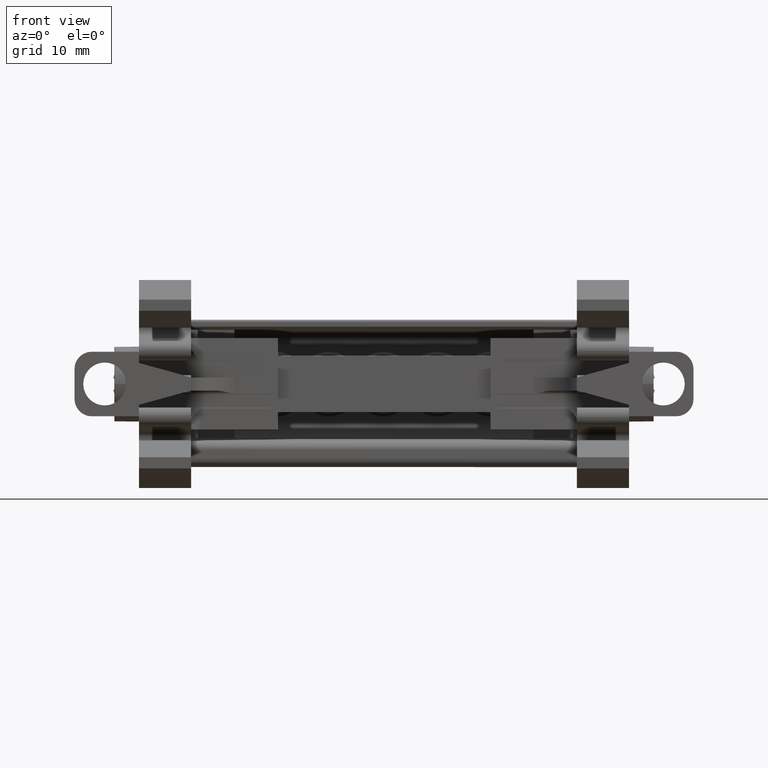
[diagram: clean part render]
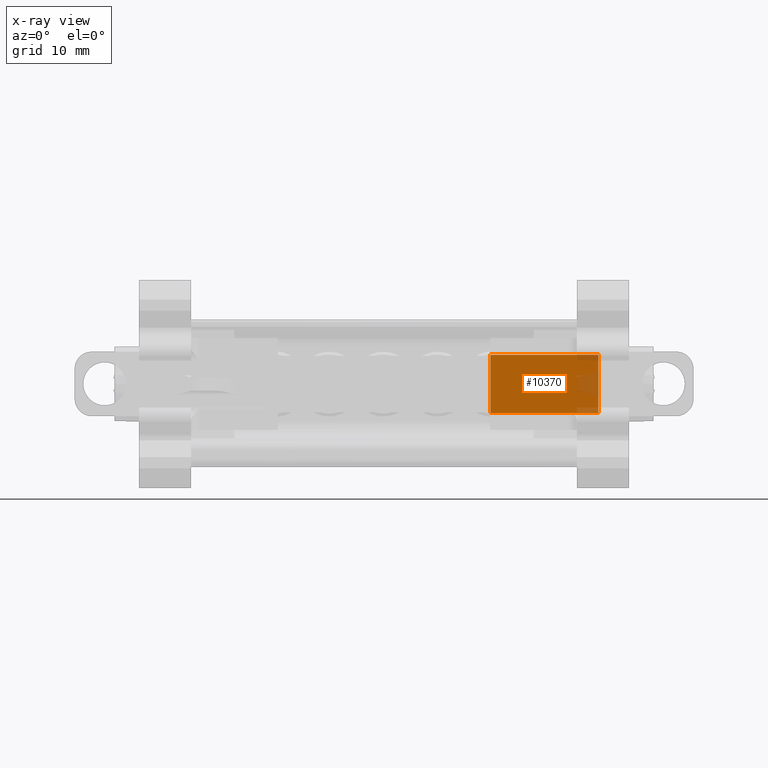
[diagram: x-ray — body ghosted, one internal face saturated and labeled with its STEP entity id]
A machine part, front view, then the same camera in x-ray: the body is ghosted and one INTERNAL B-rep face — a face not visible from any outside direction — is saturated and labeled: STEP entity #10370.
In plain terms, the highlighted planar face has unit normal (0, -1, 0).
Its self-contained STEP definition (entity closure, byte-faithful):
#2708 = CARTESIAN_POINT ( 'NONE',  ( -42.77539649368590300, -45.58431192190990800, 92.67440224735469200 ) ) ;
#2747 = CARTESIAN_POINT ( 'NONE',  ( -30.30539649368613200, -45.58431192190976600, 99.37248218392538500 ) ) ;
#2755 = CARTESIAN_POINT ( 'NONE',  ( -42.77539649368590300, -45.58431192190990800, 99.37248218392538500 ) ) ;
#2794 = CARTESIAN_POINT ( 'NONE',  ( -30.30539649368612500, -45.58431192190976600, 92.67440224735472000 ) ) ;
#4838 = LINE ( 'NONE', #4860, #9682 ) ;
#4854 = DIRECTION ( 'NONE',  ( 1.000000000000000000, 1.100161628464490300E-014, 0.0000000000000000000 ) ) ;
#4857 = DIRECTION ( 'NONE',  ( -1.000000000000000000, -1.100161628464490300E-014, -0.0000000000000000000 ) ) ;
#4860 = CARTESIAN_POINT ( 'NONE',  ( -23.12110666733106300, -45.58431192190968800, 99.37248218392538500 ) ) ;
#4872 = CARTESIAN_POINT ( 'NONE',  ( -23.12110666733106300, -45.58431192190968800, 92.67440224735469200 ) ) ;
#4879 = LINE ( 'NONE', #4872, #9684 ) ;
#4903 = DIRECTION ( 'NONE',  ( 0.0000000000000000000, -0.0000000000000000000, -1.000000000000000000 ) ) ;
#4922 = CARTESIAN_POINT ( 'NONE',  ( -42.77539649368590300, -45.58431192190990800, 99.61516604651403400 ) ) ;
#4931 = LINE ( 'NONE', #4922, #9655 ) ;
#9655 = VECTOR ( 'NONE', #4903, 1000.000000000000000 ) ;
#9682 = VECTOR ( 'NONE', #4857, 1000.000000000000000 ) ;
#9684 = VECTOR ( 'NONE', #4854, 1000.000000000000000 ) ;
#9819 = VECTOR ( 'NONE', #16144, 1000.000000000000000 ) ;
#10370 = ADVANCED_FACE ( 'NONE', ( #21019 ), #21021, .F. ) ;
#11392 = AXIS2_PLACEMENT_3D ( 'NONE', #21098, #21080, #21115 ) ;
#15215 = EDGE_CURVE ( 'NONE', #24216, #24258, #4838, .T. ) ;
#15225 = EDGE_CURVE ( 'NONE', #24164, #24268, #4879, .T. ) ;
#15232 = EDGE_CURVE ( 'NONE', #24258, #24164, #4931, .T. ) ;
#15446 = EDGE_CURVE ( 'NONE', #24268, #24216, #16156, .T. ) ;
#16137 = CARTESIAN_POINT ( 'NONE',  ( -30.30539649368613200, -45.58431192190976600, 99.09784221563457200 ) ) ;
#16144 = DIRECTION ( 'NONE',  ( -2.352285033424550400E-015, -2.587893732985000900E-029, 1.000000000000000000 ) ) ;
#16156 = LINE ( 'NONE', #16137, #9819 ) ;
#19187 = EDGE_LOOP ( 'NONE', ( #32147, #32113, #32137, #32157 ) ) ;
#21019 = FACE_OUTER_BOUND ( 'NONE', #19187, .T. ) ;
#21021 = PLANE ( 'NONE',  #11392 ) ;
#21080 = DIRECTION ( 'NONE',  ( 1.100161628464490300E-014, -1.000000000000000000, 0.0000000000000000000 ) ) ;
#21098 = CARTESIAN_POINT ( 'NONE',  ( -23.12110666733106300, -45.58431192190968800, 99.61516604651403400 ) ) ;
#21115 = DIRECTION ( 'NONE',  ( 1.000000000000000000, 1.100161628464490300E-014, 0.0000000000000000000 ) ) ;
#24164 = VERTEX_POINT ( 'NONE', #2708 ) ;
#24216 = VERTEX_POINT ( 'NONE', #2747 ) ;
#24258 = VERTEX_POINT ( 'NONE', #2755 ) ;
#24268 = VERTEX_POINT ( 'NONE', #2794 ) ;
#32113 = ORIENTED_EDGE ( 'NONE', *, *, #15225, .F. ) ;
#32137 = ORIENTED_EDGE ( 'NONE', *, *, #15232, .F. ) ;
#32147 = ORIENTED_EDGE ( 'NONE', *, *, #15446, .F. ) ;
#32157 = ORIENTED_EDGE ( 'NONE', *, *, #15215, .F. ) ;